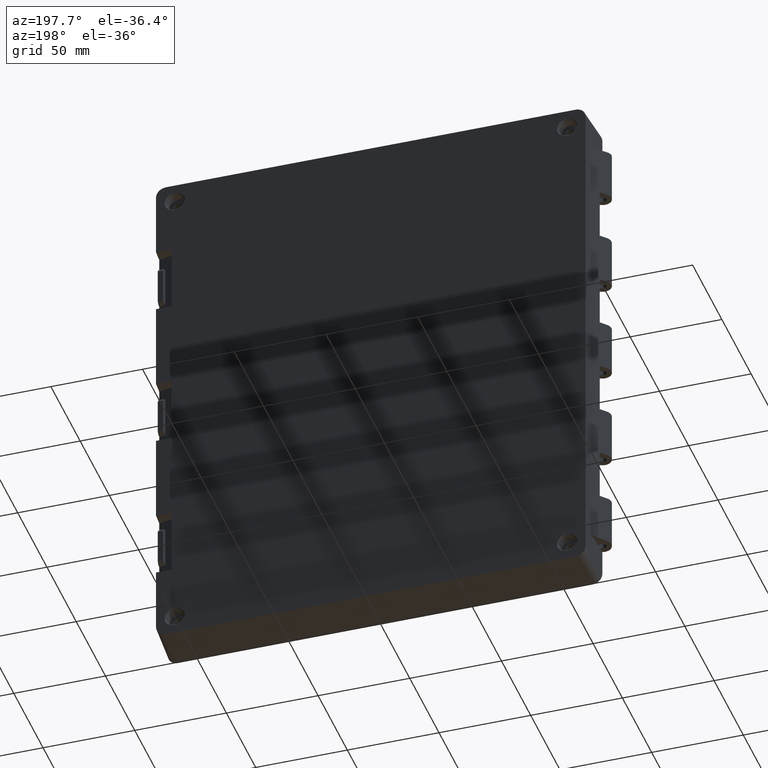
[diagram: clean part render]
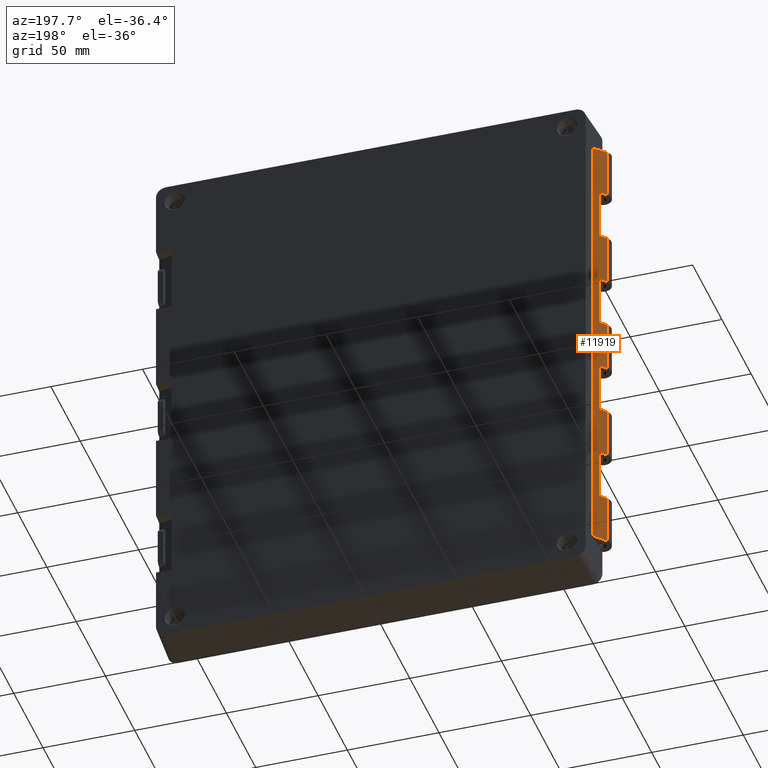
[diagram: same view with one face highlighted and labeled with its STEP entity id]
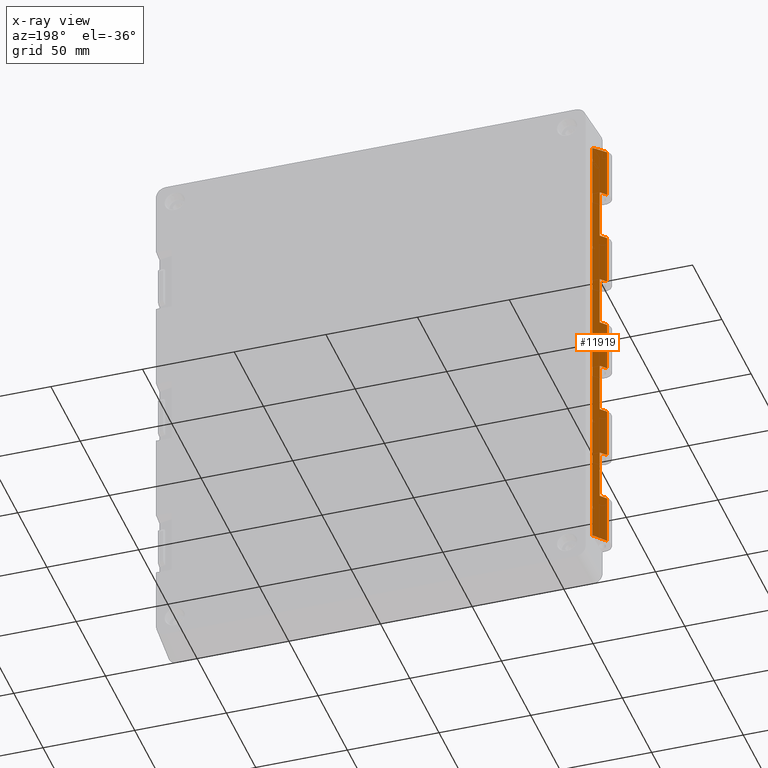
[diagram: x-ray of the same camera — body ghosted, the highlighted face saturated]
A machine part, auxiliary view. The second image highlights one B-rep face of the part: STEP entity #11919.
The next image is the same camera in x-ray: the body ghosted, the highlighted face saturated — about 0% of this face is hidden behind the body in this view.
In plain terms, the highlighted planar face has unit normal (0.736, -0.677, 0).
Its self-contained STEP definition (entity closure, byte-faithful):
#949=CARTESIAN_POINT('',(-1.236714999260E2,2.171787012678E-1,
-9.799620913167E1));
#955=DIRECTION('',(0.E0,0.E0,-1.E0));
#956=VECTOR('',#955,2.743350626120E1);
#957=CARTESIAN_POINT('',(-1.236714999260E2,2.171787012678E-1,
-9.799620913167E1));
#958=LINE('',#957,#956);
#1013=CARTESIAN_POINT('',(-1.236714999260E2,2.171787012678E-1,
-7.000379086833E1));
#1015=DIRECTION('',(0.E0,0.E0,-1.E0));
#1016=VECTOR('',#1015,2.800758173666E1);
#1017=CARTESIAN_POINT('',(-1.236714999260E2,2.171787012679E-1,
-4.199620913167E1));
#1018=LINE('',#1017,#1016);
#1073=CARTESIAN_POINT('',(-1.236714999260E2,2.171787012679E-1,
-4.199620913167E1));
#1133=CARTESIAN_POINT('',(-1.236714999260E2,2.171787012678E-1,
-1.400379086833E1));
#1135=DIRECTION('',(0.E0,0.E0,-1.E0));
#1136=VECTOR('',#1135,2.800758173666E1);
#1137=CARTESIAN_POINT('',(-1.236714999260E2,2.171787012678E-1,
1.400379086833E1));
#1138=LINE('',#1137,#1136);
#1193=CARTESIAN_POINT('',(-1.236714999260E2,2.171787012678E-1,
1.400379086833E1));
#1253=CARTESIAN_POINT('',(-1.236714999260E2,2.171787012679E-1,
4.199620913167E1));
#1255=DIRECTION('',(0.E0,0.E0,-1.E0));
#1256=VECTOR('',#1255,2.800758173666E1);
#1257=CARTESIAN_POINT('',(-1.236714999260E2,2.171787012678E-1,
7.000379086833E1));
#1258=LINE('',#1257,#1256);
#1313=CARTESIAN_POINT('',(-1.236714999260E2,2.171787012677E-1,
7.000379086833E1));
#1373=CARTESIAN_POINT('',(-1.236714999260E2,2.171787012677E-1,
9.799620913167E1));
#1375=DIRECTION('',(0.E0,0.E0,-1.E0));
#1376=VECTOR('',#1375,2.743350626120E1);
#1377=CARTESIAN_POINT('',(-1.236714999260E2,2.171787012679E-1,
1.254297153929E2));
#1378=LINE('',#1377,#1376);
#4429=DIRECTION('',(6.769193859926E-1,7.359450563421E-1,1.284596874205E-2));
#4430=VECTOR('',#4429,4.454127001691E0);
#4431=CARTESIAN_POINT('',(-1.236714999260E2,2.171787012678E-1,
-9.799620913167E1));
#4432=LINE('',#4431,#4430);
#4433=DIRECTION('',(6.764721936237E-1,7.354588699218E-1,3.854376612665E-2));
#4434=VECTOR('',#4433,8.908337572770E0);
#4435=CARTESIAN_POINT('',(-1.236714999260E2,2.171787012678E-1,
-1.254297153929E2));
#4436=LINE('',#4435,#4434);
#4437=DIRECTION('',(0.E0,0.E0,1.E0));
#4438=VECTOR('',#4437,2.501727090258E2);
#4439=CARTESIAN_POINT('',(-1.176452572666E2,6.768894585419E0,
-1.250863545129E2));
#4440=LINE('',#4439,#4438);
#4441=DIRECTION('',(6.764721936237E-1,7.354588699218E-1,-3.854376612662E-2));
#4442=VECTOR('',#4441,8.908337572770E0);
#4443=CARTESIAN_POINT('',(-1.236714999260E2,2.171787012679E-1,
1.254297153929E2));
#4444=LINE('',#4443,#4442);
#4445=DIRECTION('',(6.769193859926E-1,7.359450563421E-1,-1.284596874205E-2));
#4446=VECTOR('',#4445,4.454127001691E0);
#4447=CARTESIAN_POINT('',(-1.236714999260E2,2.171787012678E-1,
9.799620913167E1));
#4448=LINE('',#4447,#4446);
#4449=DIRECTION('',(0.E0,0.E0,1.E0));
#4450=VECTOR('',#4449,2.787798311086E1);
#4451=CARTESIAN_POINT('',(-1.206564150109E2,3.495171448482E0,7.006100844457E1));
#4452=LINE('',#4451,#4450);
#4453=DIRECTION('',(6.769193859926E-1,7.359450563421E-1,1.284596874205E-2));
#4454=VECTOR('',#4453,4.454127001691E0);
#4455=CARTESIAN_POINT('',(-1.236714999260E2,2.171787012678E-1,
7.000379086833E1));
#4456=LINE('',#4455,#4454);
#4457=DIRECTION('',(6.769193859926E-1,7.359450563421E-1,-1.284596874205E-2));
#4458=VECTOR('',#4457,4.454127001691E0);
#4459=CARTESIAN_POINT('',(-1.236714999260E2,2.171787012679E-1,
4.199620913167E1));
#4460=LINE('',#4459,#4458);
#4461=DIRECTION('',(0.E0,0.E0,1.E0));
#4462=VECTOR('',#4461,2.787798311086E1);
#4463=CARTESIAN_POINT('',(-1.206564150109E2,3.495171448482E0,1.406100844457E1));
#4464=LINE('',#4463,#4462);
#4465=DIRECTION('',(6.769193859926E-1,7.359450563421E-1,1.284596874205E-2));
#4466=VECTOR('',#4465,4.454127001691E0);
#4467=CARTESIAN_POINT('',(-1.236714999260E2,2.171787012678E-1,
1.400379086833E1));
#4468=LINE('',#4467,#4466);
#4469=DIRECTION('',(6.769193859926E-1,7.359450563421E-1,-1.284596874205E-2));
#4470=VECTOR('',#4469,4.454127001691E0);
#4471=CARTESIAN_POINT('',(-1.236714999260E2,2.171787012678E-1,
-1.400379086833E1));
#4472=LINE('',#4471,#4470);
#4473=DIRECTION('',(0.E0,0.E0,1.E0));
#4474=VECTOR('',#4473,2.787798311086E1);
#4475=CARTESIAN_POINT('',(-1.206564150109E2,3.495171448482E0,
-4.193899155543E1));
#4476=LINE('',#4475,#4474);
#4477=DIRECTION('',(6.769193859926E-1,7.359450563421E-1,1.284596874205E-2));
#4478=VECTOR('',#4477,4.454127001691E0);
#4479=CARTESIAN_POINT('',(-1.236714999260E2,2.171787012679E-1,
-4.199620913167E1));
#4480=LINE('',#4479,#4478);
#4481=DIRECTION('',(6.769193859926E-1,7.359450563421E-1,-1.284596874206E-2));
#4482=VECTOR('',#4481,4.454127001691E0);
#4483=CARTESIAN_POINT('',(-1.236714999260E2,2.171787012678E-1,
-7.000379086833E1));
#4484=LINE('',#4483,#4482);
#4485=DIRECTION('',(0.E0,0.E0,1.E0));
#4486=VECTOR('',#4485,2.787798311086E1);
#4487=CARTESIAN_POINT('',(-1.206564150109E2,3.495171448482E0,
-9.793899155543E1));
#4488=LINE('',#4487,#4486);
#6175=CARTESIAN_POINT('',(-1.236714999260E2,2.171787012678E-1,
-1.254297153929E2));
#6176=CARTESIAN_POINT('',(-1.176452572666E2,6.768894585419E0,
-1.250863545129E2));
#6177=VERTEX_POINT('',#6175);
#6178=VERTEX_POINT('',#6176);
#6179=CARTESIAN_POINT('',(-1.236714999260E2,2.171787012679E-1,
1.254297153929E2));
#6180=CARTESIAN_POINT('',(-1.176452572666E2,6.768894585420E0,1.250863545129E2));
#6181=VERTEX_POINT('',#6179);
#6182=VERTEX_POINT('',#6180);
#7000=VERTEX_POINT('',#949);
#7002=VERTEX_POINT('',#1013);
#7004=VERTEX_POINT('',#1073);
#7006=VERTEX_POINT('',#1133);
#7008=VERTEX_POINT('',#1193);
#7010=VERTEX_POINT('',#1253);
#7012=VERTEX_POINT('',#1313);
#7014=VERTEX_POINT('',#1373);
#7015=CARTESIAN_POINT('',(-1.206564150109E2,3.495171448482E0,
-9.793899155543E1));
#7016=VERTEX_POINT('',#7015);
#7017=CARTESIAN_POINT('',(-1.206564150109E2,3.495171448482E0,
-7.006100844457E1));
#7018=VERTEX_POINT('',#7017);
#7019=CARTESIAN_POINT('',(-1.206564150109E2,3.495171448482E0,
-4.193899155543E1));
#7020=VERTEX_POINT('',#7019);
#7021=CARTESIAN_POINT('',(-1.206564150109E2,3.495171448482E0,
-1.406100844457E1));
#7022=VERTEX_POINT('',#7021);
#7023=CARTESIAN_POINT('',(-1.206564150109E2,3.495171448482E0,1.406100844457E1));
#7024=VERTEX_POINT('',#7023);
#7025=CARTESIAN_POINT('',(-1.206564150109E2,3.495171448482E0,4.193899155543E1));
#7026=VERTEX_POINT('',#7025);
#7027=CARTESIAN_POINT('',(-1.206564150109E2,3.495171448482E0,7.006100844457E1));
#7028=VERTEX_POINT('',#7027);
#7029=CARTESIAN_POINT('',(-1.206564150109E2,3.495171448482E0,9.793899155543E1));
#7030=VERTEX_POINT('',#7029);
#11884=CARTESIAN_POINT('',(-1.176452572666E2,6.768894585420E0,1.4E1));
#11885=DIRECTION('',(7.360057862850E-1,-6.769752451567E-1,0.E0));
#11886=DIRECTION('',(6.769752451567E-1,7.360057862850E-1,0.E0));
#11887=AXIS2_PLACEMENT_3D('',#11884,#11885,#11886);
#11888=PLANE('',#11887);
#11889=ORIENTED_EDGE('',*,*,#7886,.F.);
#11890=ORIENTED_EDGE('',*,*,#8073,.T.);
#11891=ORIENTED_EDGE('',*,*,#7992,.T.);
#11892=ORIENTED_EDGE('',*,*,#8011,.T.);
#11893=ORIENTED_EDGE('',*,*,#8050,.F.);
#11894=ORIENTED_EDGE('',*,*,#8131,.T.);
#11895=ORIENTED_EDGE('',*,*,#11836,.T.);
#11896=ORIENTED_EDGE('',*,*,#11875,.F.);
#11898=ORIENTED_EDGE('',*,*,#11897,.F.);
#11899=ORIENTED_EDGE('',*,*,#8116,.T.);
#11900=ORIENTED_EDGE('',*,*,#7776,.T.);
#11902=ORIENTED_EDGE('',*,*,#11901,.F.);
#11904=ORIENTED_EDGE('',*,*,#11903,.F.);
#11905=ORIENTED_EDGE('',*,*,#8101,.T.);
#11907=ORIENTED_EDGE('',*,*,#11906,.T.);
#11909=ORIENTED_EDGE('',*,*,#11908,.F.);
#11911=ORIENTED_EDGE('',*,*,#11910,.F.);
#11912=ORIENTED_EDGE('',*,*,#8085,.T.);
#11914=ORIENTED_EDGE('',*,*,#11913,.T.);
#11916=ORIENTED_EDGE('',*,*,#11915,.F.);
#11917=EDGE_LOOP('',(#11889,#11890,#11891,#11892,#11893,#11894,#11895,#11896,
#11898,#11899,#11900,#11902,#11904,#11905,#11907,#11909,#11911,#11912,#11914,
#11916));
#11918=FACE_OUTER_BOUND('',#11917,.F.);
#11919=ADVANCED_FACE('',(#11918),#11888,.F.);
#7776=EDGE_CURVE('',#7010,#7026,#4460,.T.);
#7886=EDGE_CURVE('',#7000,#7016,#4432,.T.);
#7992=EDGE_CURVE('',#6177,#6178,#4436,.T.);
#8011=EDGE_CURVE('',#6178,#6182,#4440,.T.);
#8050=EDGE_CURVE('',#6181,#6182,#4444,.T.);
#8073=EDGE_CURVE('',#7000,#6177,#958,.T.);
#8085=EDGE_CURVE('',#7004,#7002,#1018,.T.);
#8101=EDGE_CURVE('',#7008,#7006,#1138,.T.);
#8116=EDGE_CURVE('',#7012,#7010,#1258,.T.);
#8131=EDGE_CURVE('',#6181,#7014,#1378,.T.);
#11836=EDGE_CURVE('',#7014,#7030,#4448,.T.);
#11875=EDGE_CURVE('',#7028,#7030,#4452,.T.);
#11897=EDGE_CURVE('',#7012,#7028,#4456,.T.);
#11901=EDGE_CURVE('',#7024,#7026,#4464,.T.);
#11903=EDGE_CURVE('',#7008,#7024,#4468,.T.);
#11906=EDGE_CURVE('',#7006,#7022,#4472,.T.);
#11908=EDGE_CURVE('',#7020,#7022,#4476,.T.);
#11910=EDGE_CURVE('',#7004,#7020,#4480,.T.);
#11913=EDGE_CURVE('',#7002,#7018,#4484,.T.);
#11915=EDGE_CURVE('',#7016,#7018,#4488,.T.);